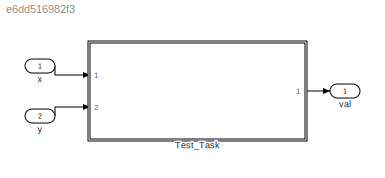
MODEL slx_e6dd516982f3
KIND model
CONFIG AbsTol = auto
CONFIG EnableMultiTasking = off
CONFIG FixedStep = 0.001
CONFIG MaxStep = auto
CONFIG MinStep = auto
CONFIG RelTol = 1e-3
CONFIG SampleTimeConstraint = Unconstrained
CONFIG SolverName = FixedStepDiscrete
CONFIG StartTime = 0.0
CONFIG StopTime = 1
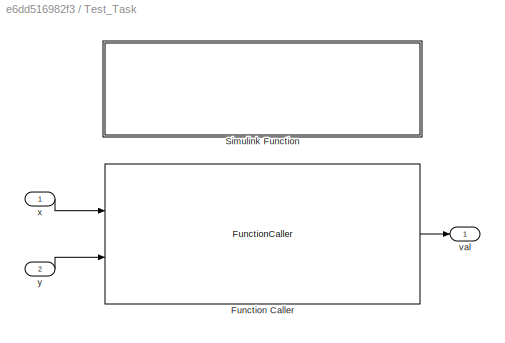
BLOCK [SubSystem] Test_Task
  Ports = [2, 1]
  RequestExecContextInheritance = off
BLOCK [FunctionCaller] Test_Task/Function Caller
  FunctionPrototype = val = add(x,y)
  InputArgumentSpecifications = uint16(1),uint16(1)
  OutputArgumentSpecifications = uint16(1)
  Ports = [2, 1]
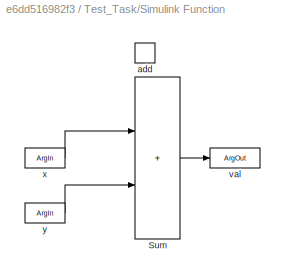
BLOCK [SubSystem] Test_Task/Simulink Function
  Ports = [0, 0, 0, 1]
  RequestExecContextInheritance = off
  TreatAsAtomicUnit = on
BLOCK [Sum] Test_Task/Simulink Function/Sum
  IconShape = rectangular
  Inputs = |++
  Ports = [2, 1]
BLOCK [TriggerPort] Test_Task/Simulink Function/add
  FunctionName = add
  FunctionVisibility = scoped
  IsSimulinkFunction = on
  Ports = []
  StatesWhenEnabling = held
  TriggerType = function-call
  VariantControl = (inherit)
BLOCK [ArgOut] Test_Task/Simulink Function/val
  ArgumentName = val
  OutDataTypeStr = uint16
BLOCK [ArgIn] Test_Task/Simulink Function/x
  ArgumentName = x
  DisableCoverage = on
  OutDataTypeStr = uint16
BLOCK [ArgIn] Test_Task/Simulink Function/y
  ArgumentName = y
  OutDataTypeStr = uint16
  Port = 2
BLOCK [Outport] Test_Task/val
  OutDataTypeStr = uint16
BLOCK [Inport] Test_Task/x
  OutDataTypeStr = uint16
BLOCK [Inport] Test_Task/y
  OutDataTypeStr = uint16
  Port = 2
BLOCK [Outport] val
  OutDataTypeStr = uint16
BLOCK [Inport] x
  OutDataTypeStr = uint16
BLOCK [Inport] y
  OutDataTypeStr = uint16
  Port = 2
LINE Test_Task/Function Caller:1 -> Test_Task/val:1
LINE Test_Task/Simulink Function/Sum:1 -> Test_Task/Simulink Function/val:1
LINE Test_Task/Simulink Function/x:1 -> Test_Task/Simulink Function/Sum:1
LINE Test_Task/Simulink Function/y:1 -> Test_Task/Simulink Function/Sum:2
LINE Test_Task/x:1 -> Test_Task/Function Caller:1
LINE Test_Task/y:1 -> Test_Task/Function Caller:2
LINE Test_Task:1 -> val:1
LINE x:1 -> Test_Task:1
LINE y:1 -> Test_Task:2
